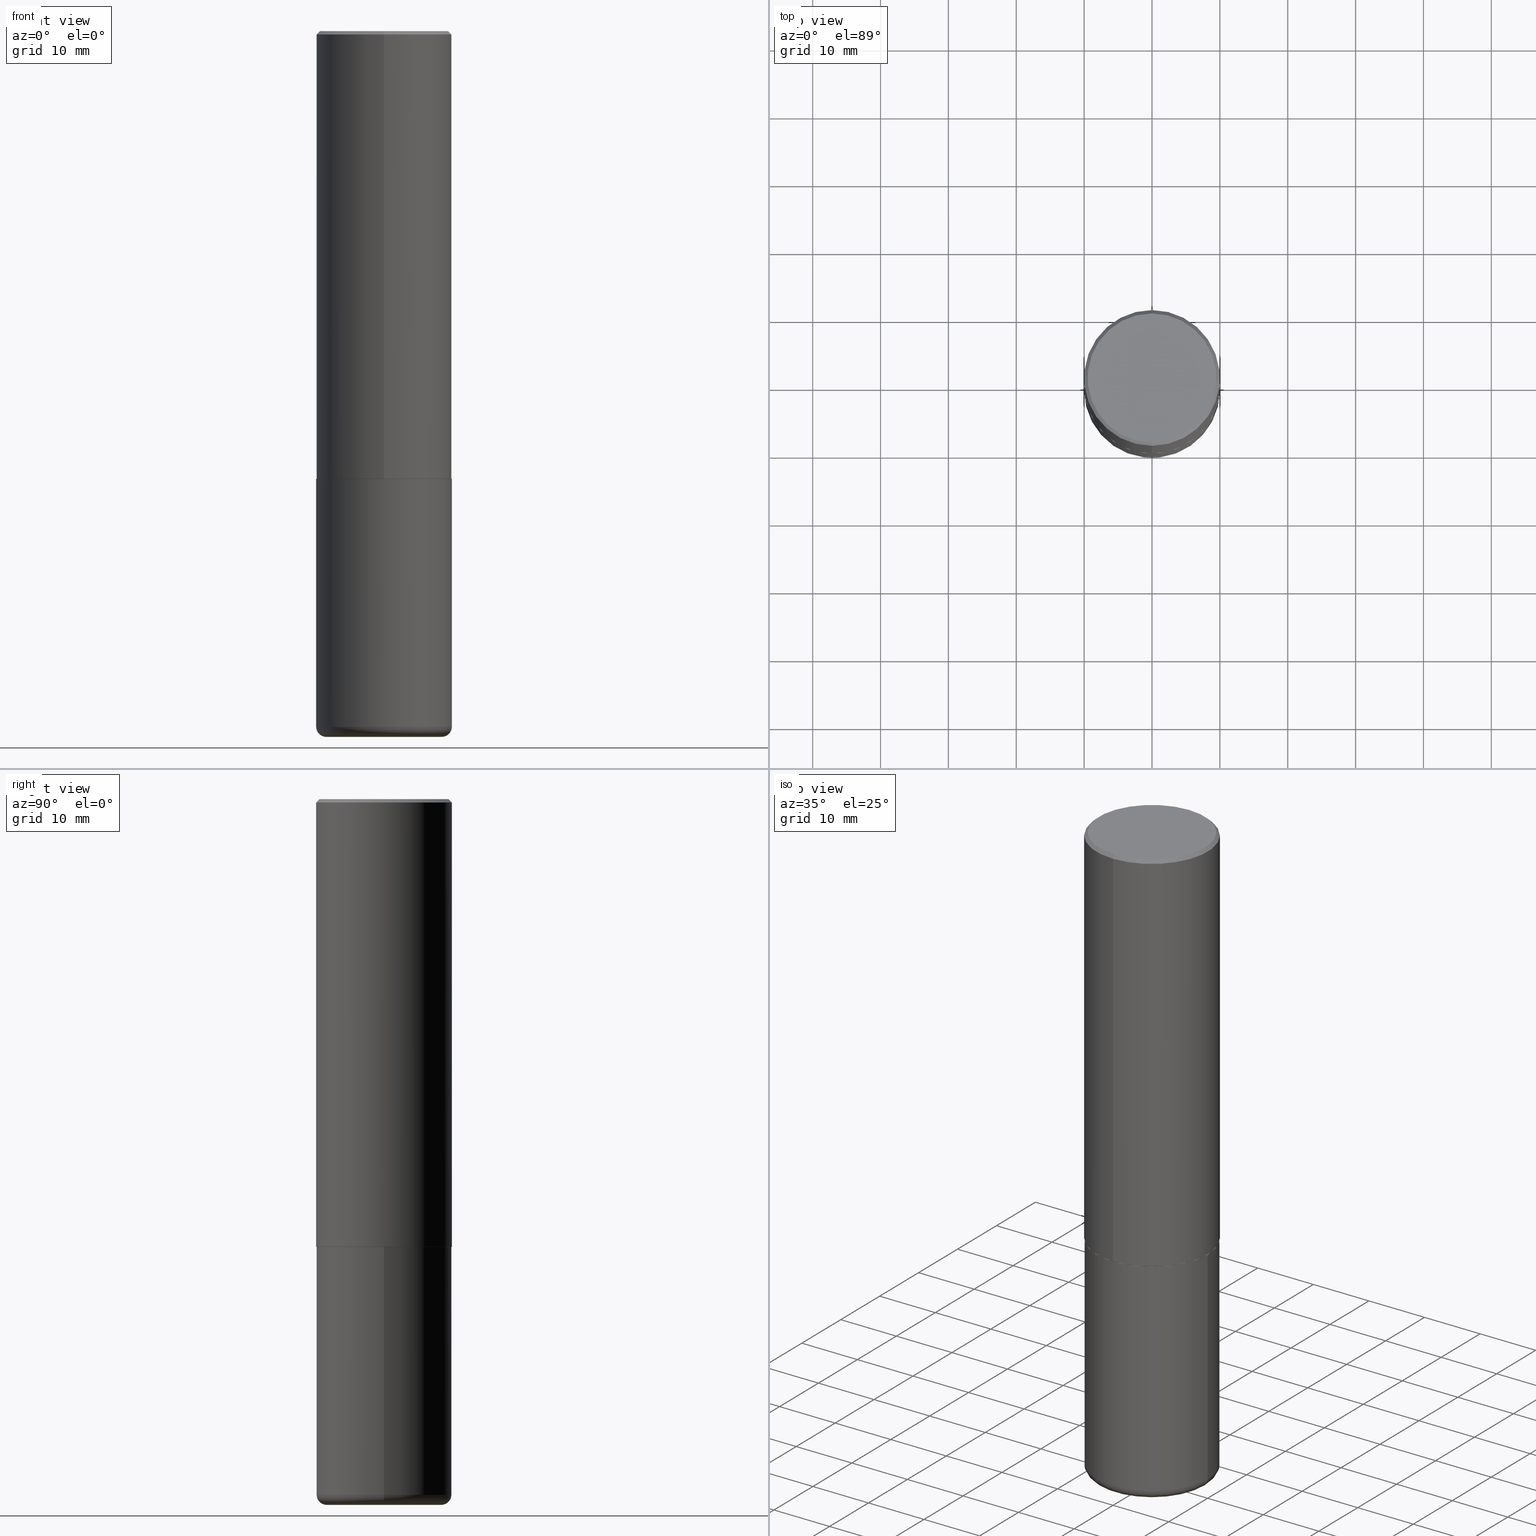
[diagram: canonical four-view strip — front | top / right | iso, engineering-drawing reading convention]
A machine part, canonical four-view strip (front | top / right | iso — engineering-drawing reading convention). The complete STEP part file that produces these views, byte-faithful:
ISO-10303-21;
HEADER;
FILE_DESCRIPTION (( 'STEP AP203' ),
    '1' );
FILE_NAME ('46648.STEP',
    '2024-03-05T02:42:28',
    ( '' ),
    ( '' ),
    'SwSTEP 2.0',
    'SolidWorks 2023',
    '' );
FILE_SCHEMA (( 'CONFIG_CONTROL_DESIGN' ));
ENDSEC;

DATA;
#1 = EDGE_LOOP ( 'NONE', ( #386, #154 ) ) ;
#2 = CC_DESIGN_PERSON_AND_ORGANIZATION_ASSIGNMENT ( #377, #407, ( #113 ) ) ;
#3 = AXIS2_PLACEMENT_3D ( 'NONE', #174, #152, #175 ) ;
#4 = CC_DESIGN_APPROVAL ( #266, ( #79 ) ) ;
#5 = DIRECTION ( 'NONE',  ( -2.446448598478590525E-29, 3.490078220512605001E-15, 1.000000000000000000 ) ) ;
#6 = ORIENTED_EDGE ( 'NONE', *, *, #171, .T. ) ;
#7 = APPROVAL ( #185, 'UNSPECIFIED' ) ;
#8 = CIRCLE ( 'NONE', #110, 0.05910000000000026343 ) ;
#9 = APPROVAL_STATUS ( 'not_yet_approved' ) ;
#10 = CC_DESIGN_APPROVAL ( #42, ( #113 ) ) ;
#11 = ORIENTED_EDGE ( 'NONE', *, *, #166, .F. ) ;
#12 =( LENGTH_UNIT ( ) NAMED_UNIT ( * ) SI_UNIT ( $, .METRE. ) );
#13 = DIRECTION ( 'NONE',  ( 2.438088387897960049E-29, -3.491481338843145188E-15, -1.000000000000000000 ) ) ;
#14 = VERTEX_POINT ( 'NONE', #291 ) ;
#15 = DIRECTION ( 'NONE',  ( -6.982962677686265133E-15, -1.000000000000000000, 3.491137977679279424E-15 ) ) ;
#16 = VERTEX_POINT ( 'NONE', #252 ) ;
#17 = CARTESIAN_POINT ( 'NONE',  ( 0.3937000000000000499, -1.182145751705511584E-14, -2.598400000000000265 ) ) ;
#18 = APPLICATION_PROTOCOL_DEFINITION ( 'international standard', 'config_control_design', 1994, #233 ) ;
#19 = COORDINATED_UNIVERSAL_TIME_OFFSET ( 5, 0, .BEHIND. ) ;
#20 = CIRCLE ( 'NONE', #401, 0.3346000000000000085 ) ;
#21 = ORIENTED_EDGE ( 'NONE', *, *, #163, .F. ) ;
#22 = PERSON_AND_ORGANIZATION ( #390, #396 ) ;
#23 = AXIS2_PLACEMENT_3D ( 'NONE', #414, #320, #229 ) ;
#24 = DATE_AND_TIME ( #117, #108 ) ;
#25 = ORIENTED_EDGE ( 'NONE', *, *, #225, .F. ) ;
#26 = DIRECTION ( 'NONE',  ( -2.446448598478591086E-29, 3.490078220512604606E-15, 1.000000000000000000 ) ) ;
#27 = DIRECTION ( 'NONE',  ( 2.446448598478591086E-29, -3.490078220512604606E-15, -1.000000000000000000 ) ) ;
#28 = CALENDAR_DATE ( 2024, 4, 3 ) ;
#29 = CYLINDRICAL_SURFACE ( 'NONE', #222, 0.3937000000000001609 ) ;
#30 = ADVANCED_FACE ( 'NONE', ( #167 ), #164, .T. ) ;
#31 = ORIENTED_EDGE ( 'NONE', *, *, #163, .T. ) ;
#32 = CARTESIAN_POINT ( 'NONE',  ( 6.354306145991459756E-29, -9.072265110850031044E-15, -2.598400000000000265 ) ) ;
#33 = LOCAL_TIME ( 21, 42, 28.00000000000000000, #409 ) ;
#34 = PERSON_AND_ORGANIZATION ( #390, #396 ) ;
#35 = DIRECTION ( 'NONE',  ( -2.446448598478591086E-29, 3.490078220512604606E-15, 1.000000000000000000 ) ) ;
#36 = DIRECTION ( 'NONE',  ( 1.000000000000000000, -6.982962677686264344E-15, 0.000000000000000000 ) ) ;
#37 = CONICAL_SURFACE ( 'NONE', #260, 0.3926999999999999935, 0.7853981633979605359 ) ;
#38 = AXIS2_PLACEMENT_3D ( 'NONE', #241, #41, #144 ) ;
#39 = EDGE_CURVE ( 'NONE', #246, #14, #20, .T. ) ;
#40 = ADVANCED_FACE ( 'NONE', ( #195 ), #248, .T. ) ;
#41 = DIRECTION ( 'NONE',  ( -2.445468806185136597E-29, 3.491481338843145583E-15, 1.000000000000000000 ) ) ;
#42 = APPROVAL ( #316, 'UNSPECIFIED' ) ;
#43 = ORIENTED_EDGE ( 'NONE', *, *, #318, .T. ) ;
#44 = AXIS2_PLACEMENT_3D ( 'NONE', #327, #35, #197 ) ;
#45 = ORIENTED_EDGE ( 'NONE', *, *, #217, .T. ) ;
#46 = CARTESIAN_POINT ( 'NONE',  ( 2.793854037008778575E-15, 0.3926999999999909452, -2.598400000000001597 ) ) ;
#47 = ADVANCED_FACE ( 'NONE', ( #193 ), #86, .F. ) ;
#48 = CARTESIAN_POINT ( 'NONE',  ( -2.632373081744935921E-15, -0.3736999999999999211, 1.384819622997344612E-15 ) ) ;
#49 = EDGE_LOOP ( 'NONE', ( #21, #353, #258, #120 ) ) ;
#50 = DIRECTION ( 'NONE',  ( -2.445468806185136597E-29, 3.491481338843145583E-15, 1.000000000000000000 ) ) ;
#51 = CARTESIAN_POINT ( 'NONE',  ( 0.3346000000000000085, -1.642602310672145667E-14, -4.035400000000000098 ) ) ;
#52 = CC_DESIGN_DATE_AND_TIME_ASSIGNMENT ( #189, #346, ( #113 ) ) ;
#53 = PERSON_AND_ORGANIZATION ( #390, #396 ) ;
#54 = ORIENTED_EDGE ( 'NONE', *, *, #146, .F. ) ;
#55 = CIRCLE ( 'NONE', #412, 0.3926999999999999935 ) ;
#56 = ORIENTED_EDGE ( 'NONE', *, *, #196, .T. ) ;
#57 = AXIS2_PLACEMENT_3D ( 'NONE', #126, #250, #98 ) ;
#58 = FACE_OUTER_BOUND ( 'NONE', #379, .T. ) ;
#59 = FACE_OUTER_BOUND ( 'NONE', #138, .T. ) ;
#60 = DIRECTION ( 'NONE',  ( -2.445468806185136597E-29, 3.491481338843145583E-15, 1.000000000000000000 ) ) ;
#61 = CYLINDRICAL_SURFACE ( 'NONE', #280, 0.3937000000000001609 ) ;
#62 = EDGE_CURVE ( 'NONE', #14, #246, #240, .T. ) ;
#63 = CYLINDRICAL_SURFACE ( 'NONE', #354, 0.3937000000000001054 ) ;
#64 = VERTEX_POINT ( 'NONE', #209 ) ;
#65 = PERSON_AND_ORGANIZATION ( #390, #396 ) ;
#66 = DIRECTION ( 'NONE',  ( 1.000000000000000000, -6.982962677686267499E-15, 0.000000000000000000 ) ) ;
#67 = DIRECTION ( 'NONE',  ( -6.982962677686265133E-15, -1.000000000000000000, 3.490078220512604606E-15 ) ) ;
#68 = ADVANCED_FACE ( 'NONE', ( #277 ), #323, .T. ) ;
#69 = EDGE_LOOP ( 'NONE', ( #381, #6, #104, #80 ) ) ;
#70 = AXIS2_PLACEMENT_3D ( 'NONE', #51, #184, #36 ) ;
#71 = LOCAL_TIME ( 21, 42, 28.00000000000000000, #371 ) ;
#72 = CARTESIAN_POINT ( 'NONE',  ( -1.971284477073616716E-45, 2.812214008562344715E-31, 8.057739199178466551E-17 ) ) ;
#73 = CC_DESIGN_PERSON_AND_ORGANIZATION_ASSIGNMENT ( #191, #132, ( #333 ) ) ;
#74 = DIRECTION ( 'NONE',  ( -2.445468806185136597E-29, 3.491481338843145583E-15, 1.000000000000000000 ) ) ;
#75 = DIRECTION ( 'NONE',  ( -6.982962677686265133E-15, -1.000000000000000000, 4.173946514383900962E-15 ) ) ;
#76 = ORIENTED_EDGE ( 'NONE', *, *, #307, .F. ) ;
#77 = ADVANCED_FACE ( 'NONE', ( #308 ), #362, .F. ) ;
#78 = VECTOR ( 'NONE', #239, 39.37007874015748143 ) ;
#79 = SECURITY_CLASSIFICATION ( '', '', #321 ) ;
#80 = ORIENTED_EDGE ( 'NONE', *, *, #133, .F. ) ;
#81 = PRODUCT_RELATED_PRODUCT_CATEGORY ( 'detail', '', ( #215 ) ) ;
#82 = DIRECTION ( 'NONE',  ( -2.446448598478591086E-29, 3.490078220512604606E-15, 1.000000000000000000 ) ) ;
#83 = LINE ( 'NONE', #112, #254 ) ;
#84 =( CONVERSION_BASED_UNIT ( 'INCH', #359 ) LENGTH_UNIT ( ) NAMED_UNIT ( #328 ) );
#85 = CC_DESIGN_APPROVAL ( #7, ( #333 ) ) ;
#86 = PLANE ( 'NONE',  #313 ) ;
#87 = CC_DESIGN_PERSON_AND_ORGANIZATION_ASSIGNMENT ( #105, #257, ( #333 ) ) ;
#88 = CARTESIAN_POINT ( 'NONE',  ( 6.356852038286771524E-29, -9.068619248179953101E-15, -2.598400000000000265 ) ) ;
#89 = CARTESIAN_POINT ( 'NONE',  ( 4.892897196957202805E-31, -6.980156441025239140E-17, -0.02000000000000008715 ) ) ;
#90 = DIRECTION ( 'NONE',  ( 1.000000000000000000, -6.982962677686264344E-15, 0.000000000000000000 ) ) ;
#91 = CC_DESIGN_SECURITY_CLASSIFICATION ( #79, ( #333 ) ) ;
#92 = CARTESIAN_POINT ( 'NONE',  ( 6.354405589688293982E-29, -9.065129169959442290E-15, -2.597400000000000375 ) ) ;
#93 = ADVANCED_FACE ( 'NONE', ( #302 ), #341, .T. ) ;
#94 = DIRECTION ( 'NONE',  ( 7.105427357601001859E-15, 1.000000000000000000, -3.491481338843145583E-15 ) ) ;
#95 = CALENDAR_DATE ( 2024, 4, 3 ) ;
#96 = ORIENTED_EDGE ( 'NONE', *, *, #326, .F. ) ;
#97 = PERSON_AND_ORGANIZATION_ROLE ( 'classification_officer' ) ;
#98 = DIRECTION ( 'NONE',  ( -6.982962677686265133E-15, -1.000000000000000000, 4.173946514383900962E-15 ) ) ;
#99 = DIRECTION ( 'NONE',  ( 2.446448598478591086E-29, -3.490078220512604606E-15, -1.000000000000000000 ) ) ;
#100 = CARTESIAN_POINT ( 'NONE',  ( -0.3937000000000000499, -8.783487702121314705E-15, -2.598400000000000265 ) ) ;
#101 = ADVANCED_BREP_SHAPE_REPRESENTATION ( '46648', ( #410, #282, #23 ), #331 ) ;
#102 = CARTESIAN_POINT ( 'NONE',  ( 0.000000000000000000, 0.000000000000000000, 0.000000000000000000 ) ) ;
#103 = VERTEX_POINT ( 'NONE', #394 ) ;
#104 = ORIENTED_EDGE ( 'NONE', *, *, #357, .F. ) ;
#105 = PERSON_AND_ORGANIZATION ( #390, #396 ) ;
#106 = ADVANCED_FACE ( 'NONE', ( #149 ), #275, .T. ) ;
#107 = ORIENTED_EDGE ( 'NONE', *, *, #375, .F. ) ;
#108 = LOCAL_TIME ( 21, 42, 28.00000000000000000, #19 ) ;
#109 = CARTESIAN_POINT ( 'NONE',  ( 4.892897196957202805E-31, -6.980156441025239140E-17, -0.02000000000000008715 ) ) ;
#110 = AXIS2_PLACEMENT_3D ( 'NONE', #370, #94, #218 ) ;
#111 = CIRCLE ( 'NONE', #123, 0.3937000000000000499 ) ;
#112 = CARTESIAN_POINT ( 'NONE',  ( 2.790301323329976493E-15, 0.3926999999999909452, -2.598400000000001597 ) ) ;
#113 = PRODUCT_DEFINITION ( 'UNKNOWN', '', #333, #264 ) ;
#114 = CIRCLE ( 'NONE', #38, 0.3937000000000001054 ) ;
#115 = DIRECTION ( 'NONE',  ( 1.000000000000000000, -6.982962677686266711E-15, 4.876176775795935793E-29 ) ) ;
#116 = PERSON_AND_ORGANIZATION ( #390, #396 ) ;
#117 = CALENDAR_DATE ( 2024, 4, 3 ) ;
#118 = LINE ( 'NONE', #124, #128 ) ;
#119 = DIRECTION ( 'NONE',  ( -2.445468806185136597E-29, 3.491481338843145583E-15, 1.000000000000000000 ) ) ;
#120 = ORIENTED_EDGE ( 'NONE', *, *, #318, .F. ) ;
#121 = CARTESIAN_POINT ( 'NONE',  ( -2.749192406205021291E-15, -0.3937000000000093758, -2.597399999999999043 ) ) ;
#122 = VECTOR ( 'NONE', #303, 39.37007874015748143 ) ;
#123 = AXIS2_PLACEMENT_3D ( 'NONE', #109, #203, #172 ) ;
#124 = CARTESIAN_POINT ( 'NONE',  ( -2.749192406205084005E-15, -0.3937000000000001609, 1.374043795415812967E-15 ) ) ;
#125 = ORIENTED_EDGE ( 'NONE', *, *, #392, .F. ) ;
#126 = CARTESIAN_POINT ( 'NONE',  ( 6.356852038286770403E-29, -9.068619248179951523E-15, -2.598399999999999821 ) ) ;
#127 = ORIENTED_EDGE ( 'NONE', *, *, #387, .F. ) ;
#128 = VECTOR ( 'NONE', #208, 39.37007874015748143 ) ;
#129 = APPROVAL_PERSON_ORGANIZATION ( #116, #266, #147 ) ;
#130 = DIRECTION ( 'NONE',  ( -2.446448598478591086E-29, 3.490078220512604606E-15, 1.000000000000000000 ) ) ;
#131 = DIRECTION ( 'NONE',  ( 1.000000000000000000, -6.982962677686264344E-15, 0.000000000000000000 ) ) ;
#132 = PERSON_AND_ORGANIZATION_ROLE ( 'design_supplier' ) ;
#133 = EDGE_CURVE ( 'NONE', #16, #356, #242, .T. ) ;
#134 = DIRECTION ( 'NONE',  ( 1.000000000000000000, -6.982962677686266711E-15, 4.876176775795935793E-29 ) ) ;
#135 = ORIENTED_EDGE ( 'NONE', *, *, #330, .T. ) ;
#136 = CC_DESIGN_PERSON_AND_ORGANIZATION_ASSIGNMENT ( #65, #220, ( #215 ) ) ;
#137 = VERTEX_POINT ( 'NONE', #48 ) ;
#138 = EDGE_LOOP ( 'NONE', ( #187, #141, #45, #96 ) ) ;
#139 = CLOSED_SHELL ( 'NONE', ( #415, #263, #345, #30, #295, #418, #77, #47 ) ) ;
#140 = VECTOR ( 'NONE', #335, 39.37007874015748143 ) ;
#141 = ORIENTED_EDGE ( 'NONE', *, *, #279, .T. ) ;
#142 = CARTESIAN_POINT ( 'NONE',  ( 2.609533152651356620E-15, 0.3736999999999999211, -1.263953535009667799E-15 ) ) ;
#143 = AXIS2_PLACEMENT_3D ( 'NONE', #212, #13, #267 ) ;
#144 = DIRECTION ( 'NONE',  ( 1.000000000000000000, -6.982962677686266711E-15, 0.000000000000000000 ) ) ;
#145 = AXIS2_PLACEMENT_3D ( 'NONE', #72, #231, #194 ) ;
#146 = EDGE_CURVE ( 'NONE', #150, #103, #348, .T. ) ;
#147 = APPROVAL_ROLE ( '' ) ;
#148 = CARTESIAN_POINT ( 'NONE',  ( 2.797406750687515181E-15, 0.3937000000000001609, -1.374043795415812967E-15 ) ) ;
#149 = FACE_OUTER_BOUND ( 'NONE', #372, .T. ) ;
#150 = VERTEX_POINT ( 'NONE', #399 ) ;
#151 = DIRECTION ( 'NONE',  ( 1.000000000000000000, -6.982962677686267499E-15, 0.000000000000000000 ) ) ;
#152 = DIRECTION ( 'NONE',  ( -2.445468806185136597E-29, 3.491481338843145583E-15, 1.000000000000000000 ) ) ;
#153 = DATE_TIME_ROLE ( 'classification_date' ) ;
#154 = ORIENTED_EDGE ( 'NONE', *, *, #375, .T. ) ;
#155 = CIRCLE ( 'NONE', #360, 0.3736999999999999211 ) ;
#156 = AXIS2_PLACEMENT_3D ( 'NONE', #89, #27, #182 ) ;
#157 = CARTESIAN_POINT ( 'NONE',  ( 0.3937000000000001054, -2.749192406205084005E-15, 1.919750796630860452E-29 ) ) ;
#158 = ORIENTED_EDGE ( 'NONE', *, *, #383, .T. ) ;
#159 = ORIENTED_EDGE ( 'NONE', *, *, #326, .T. ) ;
#160 = CALENDAR_DATE ( 2024, 4, 3 ) ;
#161 = DATE_AND_TIME ( #28, #255 ) ;
#162 = CARTESIAN_POINT ( 'NONE',  ( 0.000000000000000000, 0.000000000000000000, 0.000000000000000000 ) ) ;
#163 = EDGE_CURVE ( 'NONE', #14, #304, #8, .T. ) ;
#164 = CONICAL_SURFACE ( 'NONE', #393, 0.3937000000000000499, 0.7853981633974473908 ) ;
#165 = CIRCLE ( 'NONE', #271, 0.3937000000000002720 ) ;
#166 = EDGE_CURVE ( 'NONE', #246, #64, #192, .T. ) ;
#167 = FACE_OUTER_BOUND ( 'NONE', #227, .T. ) ;
#168 = ADVANCED_FACE ( 'NONE', ( #170 ), #186, .F. ) ;
#169 = AXIS2_PLACEMENT_3D ( 'NONE', #179, #245, #90 ) ;
#170 = FACE_OUTER_BOUND ( 'NONE', #1, .T. ) ;
#171 = EDGE_CURVE ( 'NONE', #322, #213, #83, .T. ) ;
#172 = DIRECTION ( 'NONE',  ( -6.982962677686265133E-15, -1.000000000000000000, 3.491137977679279424E-15 ) ) ;
#173 = VECTOR ( 'NONE', #284, 39.37007874015748143 ) ;
#174 = CARTESIAN_POINT ( 'NONE',  ( 9.868444820479501934E-29, -1.408952379476762952E-14, -4.035400000000000098 ) ) ;
#175 = DIRECTION ( 'NONE',  ( 1.000000000000000000, -6.982962677686268288E-15, 4.883557194083113462E-29 ) ) ;
#176 = EDGE_LOOP ( 'NONE', ( #25, #262 ) ) ;
#177 = AXIS2_PLACEMENT_3D ( 'NONE', #183, #310, #15 ) ;
#178 = DIRECTION ( 'NONE',  ( 1.000000000000000000, -6.982962677686266711E-15, 0.000000000000000000 ) ) ;
#179 = CARTESIAN_POINT ( 'NONE',  ( 1.001297202692504327E-28, -1.429587034189326465E-14, -4.094500000000000917 ) ) ;
#180 = FACE_OUTER_BOUND ( 'NONE', #278, .T. ) ;
#181 = ORIENTED_EDGE ( 'NONE', *, *, #236, .T. ) ;
#182 = DIRECTION ( 'NONE',  ( 6.982962677686265133E-15, 1.000000000000000000, -3.491137977679279424E-15 ) ) ;
#183 = CARTESIAN_POINT ( 'NONE',  ( 4.892897196957202805E-31, -6.980156441025239140E-17, -0.02000000000000008715 ) ) ;
#184 = DIRECTION ( 'NONE',  ( -6.982962677686266711E-15, -1.000000000000000000, 3.491481338843145583E-15 ) ) ;
#185 = APPROVAL_STATUS ( 'not_yet_approved' ) ;
#186 = PLANE ( 'NONE',  #299 ) ;
#187 = ORIENTED_EDGE ( 'NONE', *, *, #383, .F. ) ;
#188 = CARTESIAN_POINT ( 'NONE',  ( 6.356852038286770403E-29, -9.068619248179951523E-15, -2.598399999999999821 ) ) ;
#189 = DATE_AND_TIME ( #95, #71 ) ;
#190 = ORIENTED_EDGE ( 'NONE', *, *, #307, .T. ) ;
#191 = PERSON_AND_ORGANIZATION ( #390, #396 ) ;
#192 = CIRCLE ( 'NONE', #70, 0.05910000000000026343 ) ;
#193 = FACE_OUTER_BOUND ( 'NONE', #219, .T. ) ;
#194 = DIRECTION ( 'NONE',  ( -6.982962677686265133E-15, -1.000000000000000000, 3.490078220512604606E-15 ) ) ;
#195 = FACE_OUTER_BOUND ( 'NONE', #204, .T. ) ;
#196 = EDGE_CURVE ( 'NONE', #361, #103, #298, .T. ) ;
#197 = DIRECTION ( 'NONE',  ( -6.982962677686265133E-15, -1.000000000000000000, 4.173946514383900962E-15 ) ) ;
#198 =( NAMED_UNIT ( * ) SI_UNIT ( $, .STERADIAN. ) SOLID_ANGLE_UNIT ( ) );
#199 = CARTESIAN_POINT ( 'NONE',  ( 6.354306145991459756E-29, -9.072265110850031044E-15, -2.598400000000000265 ) ) ;
#200 = PRODUCT_DEFINITION_SHAPE ( 'NONE', 'NONE',  #113 ) ;
#201 = VECTOR ( 'NONE', #367, 39.37007874015748143 ) ;
#202 = APPROVAL_ROLE ( '' ) ;
#203 = DIRECTION ( 'NONE',  ( -2.446448598478591086E-29, 3.490078220512604606E-15, 1.000000000000000000 ) ) ;
#204 = EDGE_LOOP ( 'NONE', ( #230, #31, #76, #11 ) ) ;
#205 = EDGE_CURVE ( 'NONE', #137, #150, #342, .T. ) ;
#206 = ADVANCED_FACE ( 'NONE', ( #180 ), #63, .T. ) ;
#207 = DIRECTION ( 'NONE',  ( -2.445468806185136877E-29, 3.491481338843145188E-15, 1.000000000000000000 ) ) ;
#208 = DIRECTION ( 'NONE',  ( -2.446448598478590805E-29, 3.490078220512605001E-15, 1.000000000000000000 ) ) ;
#209 = CARTESIAN_POINT ( 'NONE',  ( 0.3937000000000002164, -1.683871620097271431E-14, -4.035400000000000098 ) ) ;
#210 = DIRECTION ( 'NONE',  ( 6.982962677686265922E-15, 1.000000000000000000, -3.490078220512605001E-15 ) ) ;
#211 = ORIENTED_EDGE ( 'NONE', *, *, #261, .T. ) ;
#212 = CARTESIAN_POINT ( 'NONE',  ( 5.344215934733123502E-29, -2.098179479500642964E-14, -4.094500000000000917 ) ) ;
#213 = VERTEX_POINT ( 'NONE', #403 ) ;
#214 = DIRECTION ( 'NONE',  ( -6.982962677686265922E-15, -1.000000000000000000, 3.490078220512605001E-15 ) ) ;
#215 = PRODUCT ( '46648', '46648', '', ( #366 ) ) ;
#216 = DIRECTION ( 'NONE',  ( -6.982962677686265922E-15, -1.000000000000000000, 4.163344669033672479E-15 ) ) ;
#217 = EDGE_CURVE ( 'NONE', #356, #150, #118, .T. ) ;
#218 = DIRECTION ( 'NONE',  ( -1.000000000000000000, 7.105427357600993181E-15, 0.000000000000000000 ) ) ;
#219 = EDGE_LOOP ( 'NONE', ( #315, #211 ) ) ;
#220 = PERSON_AND_ORGANIZATION_ROLE ( 'design_owner' ) ;
#221 = DATE_AND_TIME ( #160, #33 ) ;
#222 = AXIS2_PLACEMENT_3D ( 'NONE', #102, #283, #404 ) ;
#223 = DIRECTION ( 'NONE',  ( 6.982962677686265133E-15, 1.000000000000000000, -3.491137977679279424E-15 ) ) ;
#224 = APPROVAL_DATE_TIME ( #161, #7 ) ;
#225 = EDGE_CURVE ( 'NONE', #16, #322, #55, .T. ) ;
#226 = EDGE_LOOP ( 'NONE', ( #269, #158, #54, #244 ) ) ;
#227 = EDGE_LOOP ( 'NONE', ( #337, #292, #56, #159 ) ) ;
#228 = CLOSED_SHELL ( 'NONE', ( #106, #40, #168, #206, #68, #93 ) ) ;
#229 = DIRECTION ( 'NONE',  ( 1.000000000000000000, 0.000000000000000000, 0.000000000000000000 ) ) ;
#230 = ORIENTED_EDGE ( 'NONE', *, *, #39, .T. ) ;
#231 = DIRECTION ( 'NONE',  ( -2.446448598478591086E-29, 3.490078220512604606E-15, 1.000000000000000000 ) ) ;
#232 = ORIENTED_EDGE ( 'NONE', *, *, #171, .F. ) ;
#233 = APPLICATION_CONTEXT ( 'configuration controlled 3d designs of mechanical parts and assemblies' ) ;
#234 = CARTESIAN_POINT ( 'NONE',  ( 0.3346000000000000085, -1.663236965384708707E-14, -4.094500000000000917 ) ) ;
#235 = FACE_OUTER_BOUND ( 'NONE', #226, .T. ) ;
#236 = EDGE_CURVE ( 'NONE', #322, #16, #293, .T. ) ;
#237 = DIRECTION ( 'NONE',  ( 5.024295867790635654E-15, 0.7071067811869121700, 0.7071067811861828645 ) ) ;
#238 = CARTESIAN_POINT ( 'NONE',  ( 0.000000000000000000, 0.000000000000000000, 0.000000000000000000 ) ) ;
#239 = DIRECTION ( 'NONE',  ( -4.851104656540959542E-15, -0.7071067811865493491, -0.7071067811865457964 ) ) ;
#240 = CIRCLE ( 'NONE', #169, 0.3346000000000000085 ) ;
#241 = CARTESIAN_POINT ( 'NONE',  ( 9.868444820479501934E-29, -1.408952379476762952E-14, -4.035400000000000098 ) ) ;
#242 = LINE ( 'NONE', #247, #201 ) ;
#243 = CC_DESIGN_PERSON_AND_ORGANIZATION_ASSIGNMENT ( #34, #97, ( #79 ) ) ;
#244 = ORIENTED_EDGE ( 'NONE', *, *, #217, .F. ) ;
#245 = DIRECTION ( 'NONE',  ( -2.445468806185136597E-29, 3.491481338843145583E-15, 1.000000000000000000 ) ) ;
#246 = VERTEX_POINT ( 'NONE', #234 ) ;
#247 = CARTESIAN_POINT ( 'NONE',  ( -2.742209443527332910E-15, -0.3927000000000090973, -2.598399999999998045 ) ) ;
#248 = TOROIDAL_SURFACE ( 'NONE', #259, 0.3346000000000000085, 0.05910000000000026343 ) ;
#249 = APPLICATION_PROTOCOL_DEFINITION ( 'international standard', 'config_control_design', 1994, #324 ) ;
#250 = DIRECTION ( 'NONE',  ( -2.446448598478591086E-29, 3.490078220512604606E-15, 1.000000000000000000 ) ) ;
#251 = COORDINATED_UNIVERSAL_TIME_OFFSET ( 5, 0, .BEHIND. ) ;
#252 = CARTESIAN_POINT ( 'NONE',  ( -2.742209443527332910E-15, -0.3927000000000090973, -2.598399999999998045 ) ) ;
#253 = DIRECTION ( 'NONE',  ( -6.982962677686265133E-15, -1.000000000000000000, 4.173946514383900962E-15 ) ) ;
#254 = VECTOR ( 'NONE', #237, 39.37007874015748143 ) ;
#255 = LOCAL_TIME ( 21, 42, 28.00000000000000000, #251 ) ;
#256 = DIRECTION ( 'NONE',  ( -6.982962677686265922E-15, -1.000000000000000000, 3.490078220512604606E-15 ) ) ;
#257 = PERSON_AND_ORGANIZATION_ROLE ( 'creator' ) ;
#258 = ORIENTED_EDGE ( 'NONE', *, *, #166, .T. ) ;
#259 = AXIS2_PLACEMENT_3D ( 'NONE', #351, #74, #391 ) ;
#260 = AXIS2_PLACEMENT_3D ( 'NONE', #188, #26, #253 ) ;
#261 = EDGE_CURVE ( 'NONE', #137, #361, #155, .T. ) ;
#262 = ORIENTED_EDGE ( 'NONE', *, *, #236, .F. ) ;
#263 = ADVANCED_FACE ( 'NONE', ( #235 ), #61, .T. ) ;
#264 = DESIGN_CONTEXT ( 'detailed design', #324, 'design' ) ;
#265 = ORIENTED_EDGE ( 'NONE', *, *, #62, .F. ) ;
#266 = APPROVAL ( #9, 'UNSPECIFIED' ) ;
#267 = DIRECTION ( 'NONE',  ( -1.000000000000000000, 6.982962677686265922E-15, -4.876176775795935793E-29 ) ) ;
#268 = LINE ( 'NONE', #157, #173 ) ;
#269 = ORIENTED_EDGE ( 'NONE', *, *, #357, .T. ) ;
#270 = AXIS2_PLACEMENT_3D ( 'NONE', #272, #397, #178 ) ;
#271 = AXIS2_PLACEMENT_3D ( 'NONE', #92, #344, #306 ) ;
#272 = CARTESIAN_POINT ( 'NONE',  ( 9.868444820479501934E-29, -1.408952379476762952E-14, -4.035400000000000098 ) ) ;
#273 = APPROVAL_DATE_TIME ( #24, #266 ) ;
#274 = LINE ( 'NONE', #358, #305 ) ;
#275 = CYLINDRICAL_SURFACE ( 'NONE', #368, 0.3937000000000001054 ) ;
#276 = SHAPE_DEFINITION_REPRESENTATION ( #200, #101 ) ;
#277 = FACE_OUTER_BOUND ( 'NONE', #49, .T. ) ;
#278 = EDGE_LOOP ( 'NONE', ( #127, #43, #135, #107 ) ) ;
#279 = EDGE_CURVE ( 'NONE', #213, #356, #332, .T. ) ;
#280 = AXIS2_PLACEMENT_3D ( 'NONE', #162, #289, #256 ) ;
#281 = CIRCLE ( 'NONE', #145, 0.3736999999999999211 ) ;
#282 = MANIFOLD_SOLID_BREP ( 'Body-Move/Copy2[2]', #139 ) ;
#283 = DIRECTION ( 'NONE',  ( -2.446448598478591086E-29, 3.490078220512604606E-15, 1.000000000000000000 ) ) ;
#284 = DIRECTION ( 'NONE',  ( -2.445468806185136877E-29, 3.491481338843145188E-15, 1.000000000000000000 ) ) ;
#285 = ORIENTED_EDGE ( 'NONE', *, *, #330, .F. ) ;
#286 = UNCERTAINTY_MEASURE_WITH_UNIT (LENGTH_MEASURE( 1.000000000000000082E-05 ), #84, 'distance_accuracy_value', 'NONE');
#287 = ORIENTED_EDGE ( 'NONE', *, *, #133, .T. ) ;
#288 = ORIENTED_EDGE ( 'NONE', *, *, #387, .T. ) ;
#289 = DIRECTION ( 'NONE',  ( -2.446448598478591086E-29, 3.490078220512604606E-15, 1.000000000000000000 ) ) ;
#290 = CIRCLE ( 'NONE', #270, 0.3937000000000001054 ) ;
#291 = CARTESIAN_POINT ( 'NONE',  ( -0.3346000000000000085, -1.160525569606004165E-14, -4.094500000000000917 ) ) ;
#292 = ORIENTED_EDGE ( 'NONE', *, *, #340, .F. ) ;
#293 = CIRCLE ( 'NONE', #44, 0.3926999999999999935 ) ;
#294 = CARTESIAN_POINT ( 'NONE',  ( -1.971284477073616716E-45, 2.812214008562344715E-31, 8.057739199178466551E-17 ) ) ;
#295 = ADVANCED_FACE ( 'NONE', ( #59 ), #29, .T. ) ;
#296 = DIRECTION ( 'NONE',  ( 2.438088387897960049E-29, -3.491481338843145188E-15, -1.000000000000000000 ) ) ;
#297 = COORDINATED_UNIVERSAL_TIME_OFFSET ( 5, 0, .BEHIND. ) ;
#298 = LINE ( 'NONE', #301, #122 ) ;
#299 = AXIS2_PLACEMENT_3D ( 'NONE', #199, #296, #336 ) ;
#300 = CARTESIAN_POINT ( 'NONE',  ( -2.700978061722651252E-15, -0.3937000000000001054, -0.01999999999999870978 ) ) ;
#301 = CARTESIAN_POINT ( 'NONE',  ( 2.749192406205083217E-15, 0.3936999999999999389, -0.02000000000000146105 ) ) ;
#302 = FACE_OUTER_BOUND ( 'NONE', #411, .T. ) ;
#303 = DIRECTION ( 'NONE',  ( 4.937700262164543309E-15, 0.7071067811865444641, -0.7071067811865506814 ) ) ;
#304 = VERTEX_POINT ( 'NONE', #388 ) ;
#305 = VECTOR ( 'NONE', #207, 39.37007874015748143 ) ;
#306 = DIRECTION ( 'NONE',  ( -6.982962677686265922E-15, -1.000000000000000000, 4.163344669033672479E-15 ) ) ;
#307 = EDGE_CURVE ( 'NONE', #64, #304, #114, .T. ) ;
#308 = FACE_OUTER_BOUND ( 'NONE', #176, .T. ) ;
#309 = LINE ( 'NONE', #148, #140 ) ;
#310 = DIRECTION ( 'NONE',  ( -2.446448598478591086E-29, 3.490078220512604606E-15, 1.000000000000000000 ) ) ;
#311 = APPROVAL_ROLE ( '' ) ;
#312 = ORIENTED_EDGE ( 'NONE', *, *, #279, .F. ) ;
#313 = AXIS2_PLACEMENT_3D ( 'NONE', #142, #334, #210 ) ;
#314 = LOCAL_TIME ( 21, 42, 28.00000000000000000, #297 ) ;
#315 = ORIENTED_EDGE ( 'NONE', *, *, #340, .T. ) ;
#316 = APPROVAL_STATUS ( 'not_yet_approved' ) ;
#317 = FACE_OUTER_BOUND ( 'NONE', #416, .T. ) ;
#318 = EDGE_CURVE ( 'NONE', #304, #64, #290, .T. ) ;
#319 = CARTESIAN_POINT ( 'NONE',  ( 6.356852038286770403E-29, -9.068619248179951523E-15, -2.598399999999999821 ) ) ;
#320 = DIRECTION ( 'NONE',  ( 0.000000000000000000, 0.000000000000000000, 1.000000000000000000 ) ) ;
#321 = SECURITY_CLASSIFICATION_LEVEL ( 'unclassified' ) ;
#322 = VERTEX_POINT ( 'NONE', #46 ) ;
#323 = TOROIDAL_SURFACE ( 'NONE', #3, 0.3346000000000000085, 0.05910000000000026343 ) ;
#324 = APPLICATION_CONTEXT ( 'configuration controlled 3d designs of mechanical parts and assemblies' ) ;
#325 = AXIS2_PLACEMENT_3D ( 'NONE', #32, #50, #66 ) ;
#326 = EDGE_CURVE ( 'NONE', #103, #150, #111, .T. ) ;
#327 = CARTESIAN_POINT ( 'NONE',  ( 6.356852038286770403E-29, -9.068619248179951523E-15, -2.598399999999999821 ) ) ;
#328 = DIMENSIONAL_EXPONENTS ( 1.000000000000000000, 0.000000000000000000, 0.000000000000000000, 0.000000000000000000, 0.000000000000000000, 0.000000000000000000, 0.000000000000000000 ) ;
#329 = DIRECTION ( 'NONE',  ( -2.445468806185136597E-29, 3.491481338843145583E-15, 1.000000000000000000 ) ) ;
#330 = EDGE_CURVE ( 'NONE', #64, #405, #268, .T. ) ;
#331 =( GEOMETRIC_REPRESENTATION_CONTEXT ( 3 ) GLOBAL_UNCERTAINTY_ASSIGNED_CONTEXT ( ( #286 ) ) GLOBAL_UNIT_ASSIGNED_CONTEXT ( ( #84, #378, #198 ) ) REPRESENTATION_CONTEXT ( 'NONE', 'WORKASPACE' ) );
#332 = CIRCLE ( 'NONE', #338, 0.3937000000000002720 ) ;
#333 = PRODUCT_DEFINITION_FORMATION_WITH_SPECIFIED_SOURCE ( 'ANY', '', #215, .NOT_KNOWN. ) ;
#334 = DIRECTION ( 'NONE',  ( 2.446448598478590525E-29, -3.490078220512605001E-15, -1.000000000000000000 ) ) ;
#335 = DIRECTION ( 'NONE',  ( -2.446448598478590805E-29, 3.490078220512605001E-15, 1.000000000000000000 ) ) ;
#336 = DIRECTION ( 'NONE',  ( -1.000000000000000000, 6.982962677686265922E-15, -4.876176775795935793E-29 ) ) ;
#337 = ORIENTED_EDGE ( 'NONE', *, *, #205, .F. ) ;
#338 = AXIS2_PLACEMENT_3D ( 'NONE', #376, #82, #216 ) ;
#339 = DIRECTION ( 'NONE',  ( -2.445468806185136597E-29, 3.491481338843145583E-15, 1.000000000000000000 ) ) ;
#340 = EDGE_CURVE ( 'NONE', #361, #137, #281, .T. ) ;
#341 = PLANE ( 'NONE',  #143 ) ;
#342 = LINE ( 'NONE', #300, #78 ) ;
#343 = VERTEX_POINT ( 'NONE', #100 ) ;
#344 = DIRECTION ( 'NONE',  ( -2.446448598478591086E-29, 3.490078220512604606E-15, 1.000000000000000000 ) ) ;
#345 = ADVANCED_FACE ( 'NONE', ( #317 ), #413, .T. ) ;
#346 = DATE_TIME_ROLE ( 'creation_date' ) ;
#347 = ORIENTED_EDGE ( 'NONE', *, *, #39, .F. ) ;
#348 = CIRCLE ( 'NONE', #177, 0.3937000000000000499 ) ;
#349 = CIRCLE ( 'NONE', #325, 0.3937000000000000499 ) ;
#350 = ORIENTED_EDGE ( 'NONE', *, *, #205, .T. ) ;
#351 = CARTESIAN_POINT ( 'NONE',  ( 9.868444820479501934E-29, -1.408952379476762952E-14, -4.035400000000000098 ) ) ;
#352 = CALENDAR_DATE ( 2024, 4, 3 ) ;
#353 = ORIENTED_EDGE ( 'NONE', *, *, #62, .T. ) ;
#354 = AXIS2_PLACEMENT_3D ( 'NONE', #238, #329, #134 ) ;
#355 = APPROVAL_PERSON_ORGANIZATION ( #22, #42, #202 ) ;
#356 = VERTEX_POINT ( 'NONE', #121 ) ;
#357 = EDGE_CURVE ( 'NONE', #356, #213, #165, .T. ) ;
#358 = CARTESIAN_POINT ( 'NONE',  ( -0.3937000000000001054, 2.797406750687515181E-15, -1.936584745033357016E-29 ) ) ;
#359 = LENGTH_MEASURE_WITH_UNIT ( LENGTH_MEASURE( 0.02539999999999999897 ), #12 );
#360 = AXIS2_PLACEMENT_3D ( 'NONE', #294, #384, #67 ) ;
#361 = VERTEX_POINT ( 'NONE', #389 ) ;
#362 = PLANE ( 'NONE',  #395 ) ;
#363 = ORIENTED_EDGE ( 'NONE', *, *, #146, .T. ) ;
#364 = CC_DESIGN_DATE_AND_TIME_ASSIGNMENT ( #221, #153, ( #79 ) ) ;
#365 = CARTESIAN_POINT ( 'NONE',  ( 6.354306145991459756E-29, -9.072265110850031044E-15, -2.598400000000000265 ) ) ;
#366 = MECHANICAL_CONTEXT ( 'NONE', #233, 'mechanical' ) ;
#367 = DIRECTION ( 'NONE',  ( -4.937700262167077130E-15, -0.7071067811869072850, 0.7071067811861877495 ) ) ;
#368 = AXIS2_PLACEMENT_3D ( 'NONE', #398, #119, #115 ) ;
#369 = APPROVAL_PERSON_ORGANIZATION ( #53, #7, #311 ) ;
#370 = CARTESIAN_POINT ( 'NONE',  ( -0.3346000000000000085, -1.171204780091433423E-14, -4.035400000000000098 ) ) ;
#371 = COORDINATED_UNIVERSAL_TIME_OFFSET ( 5, 0, .BEHIND. ) ;
#372 = EDGE_LOOP ( 'NONE', ( #190, #288, #125, #285 ) ) ;
#373 = CARTESIAN_POINT ( 'NONE',  ( 4.892897196957202805E-31, -6.980156441025239140E-17, -0.02000000000000008715 ) ) ;
#374 = ORIENTED_EDGE ( 'NONE', *, *, #261, .F. ) ;
#375 = EDGE_CURVE ( 'NONE', #343, #405, #402, .T. ) ;
#376 = CARTESIAN_POINT ( 'NONE',  ( 6.354405589688293982E-29, -9.065129169959442290E-15, -2.597400000000000375 ) ) ;
#377 = PERSON_AND_ORGANIZATION ( #390, #396 ) ;
#378 =( NAMED_UNIT ( * ) PLANE_ANGLE_UNIT ( ) SI_UNIT ( $, .RADIAN. ) );
#379 = EDGE_LOOP ( 'NONE', ( #232, #181, #287, #312 ) ) ;
#380 = AXIS2_PLACEMENT_3D ( 'NONE', #365, #339, #151 ) ;
#381 = ORIENTED_EDGE ( 'NONE', *, *, #225, .T. ) ;
#382 = DATE_AND_TIME ( #352, #314 ) ;
#383 = EDGE_CURVE ( 'NONE', #213, #103, #309, .T. ) ;
#384 = DIRECTION ( 'NONE',  ( -2.446448598478591086E-29, 3.490078220512604606E-15, 1.000000000000000000 ) ) ;
#385 = CONICAL_SURFACE ( 'NONE', #57, 0.3926999999999999935, 0.7853981633979605359 ) ;
#386 = ORIENTED_EDGE ( 'NONE', *, *, #392, .T. ) ;
#387 = EDGE_CURVE ( 'NONE', #304, #343, #274, .T. ) ;
#388 = CARTESIAN_POINT ( 'NONE',  ( -0.3937000000000002164, -1.129211704408011394E-14, -4.035400000000000098 ) ) ;
#389 = CARTESIAN_POINT ( 'NONE',  ( 2.679362779428219918E-15, 0.3736999999999999211, -1.223664839013775331E-15 ) ) ;
#390 = PERSON ( 'UNSPECIFIED', 'UNSPECIFIED', 'UNSPECIFIED', ('UNSPECIFIED'), ('UNSPECIFIED'), ('UNSPECIFIED') ) ;
#391 = DIRECTION ( 'NONE',  ( 1.000000000000000000, -6.982962677686268288E-15, 4.883557194083113462E-29 ) ) ;
#392 = EDGE_CURVE ( 'NONE', #405, #343, #349, .T. ) ;
#393 = AXIS2_PLACEMENT_3D ( 'NONE', #373, #99, #223 ) ;
#394 = CARTESIAN_POINT ( 'NONE',  ( 2.749192406205083217E-15, 0.3936999999999999389, -0.02000000000000146105 ) ) ;
#395 = AXIS2_PLACEMENT_3D ( 'NONE', #88, #5, #214 ) ;
#396 = ORGANIZATION ( 'UNSPECIFIED', 'UNSPECIFIED', '' ) ;
#397 = DIRECTION ( 'NONE',  ( -2.445468806185136597E-29, 3.491481338843145583E-15, 1.000000000000000000 ) ) ;
#398 = CARTESIAN_POINT ( 'NONE',  ( 0.000000000000000000, 0.000000000000000000, 0.000000000000000000 ) ) ;
#399 = CARTESIAN_POINT ( 'NONE',  ( -2.700978061722651252E-15, -0.3937000000000001054, -0.01999999999999870978 ) ) ;
#400 = APPROVAL_DATE_TIME ( #382, #42 ) ;
#401 = AXIS2_PLACEMENT_3D ( 'NONE', #417, #60, #131 ) ;
#402 = CIRCLE ( 'NONE', #380, 0.3937000000000000499 ) ;
#403 = CARTESIAN_POINT ( 'NONE',  ( 2.797406750687547524E-15, 0.3936999999999912236, -2.597400000000002152 ) ) ;
#404 = DIRECTION ( 'NONE',  ( -6.982962677686265922E-15, -1.000000000000000000, 3.490078220512604606E-15 ) ) ;
#405 = VERTEX_POINT ( 'NONE', #17 ) ;
#406 = FACE_OUTER_BOUND ( 'NONE', #69, .T. ) ;
#407 = PERSON_AND_ORGANIZATION_ROLE ( 'creator' ) ;
#408 = ORIENTED_EDGE ( 'NONE', *, *, #196, .F. ) ;
#409 = COORDINATED_UNIVERSAL_TIME_OFFSET ( 5, 0, .BEHIND. ) ;
#410 = MANIFOLD_SOLID_BREP ( 'Body-Move/Copy2[1]', #228 ) ;
#411 = EDGE_LOOP ( 'NONE', ( #347, #265 ) ) ;
#412 = AXIS2_PLACEMENT_3D ( 'NONE', #319, #130, #75 ) ;
#413 = CONICAL_SURFACE ( 'NONE', #156, 0.3937000000000000499, 0.7853981633974473908 ) ;
#414 = CARTESIAN_POINT ( 'NONE',  ( 0.000000000000000000, 0.000000000000000000, 0.000000000000000000 ) ) ;
#415 = ADVANCED_FACE ( 'NONE', ( #406 ), #385, .T. ) ;
#416 = EDGE_LOOP ( 'NONE', ( #374, #350, #363, #408 ) ) ;
#417 = CARTESIAN_POINT ( 'NONE',  ( 1.001297202692504327E-28, -1.429587034189326465E-14, -4.094500000000000917 ) ) ;
#418 = ADVANCED_FACE ( 'NONE', ( #58 ), #37, .T. ) ;
ENDSEC;
END-ISO-10303-21;
